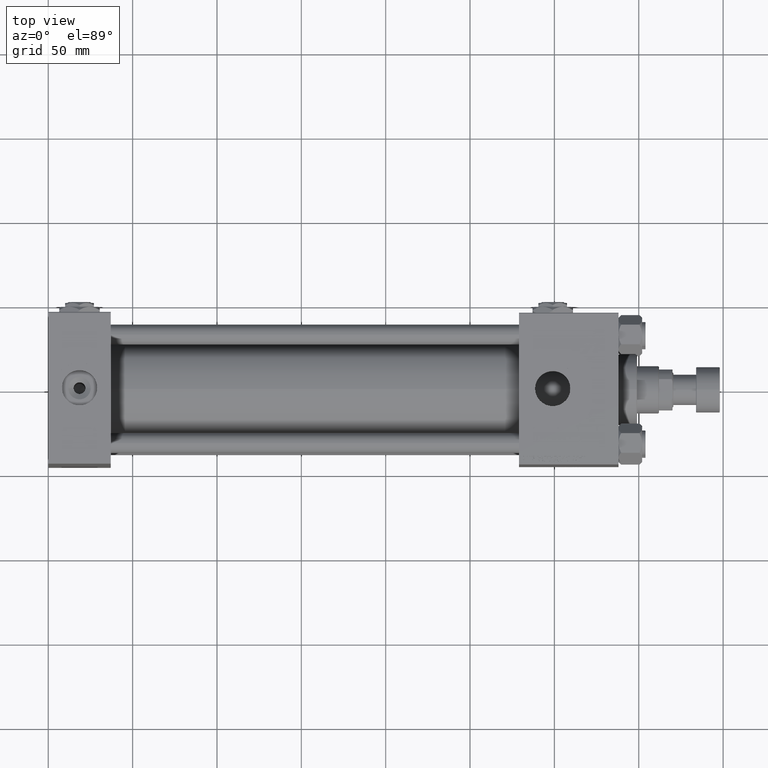
[diagram: clean part render]
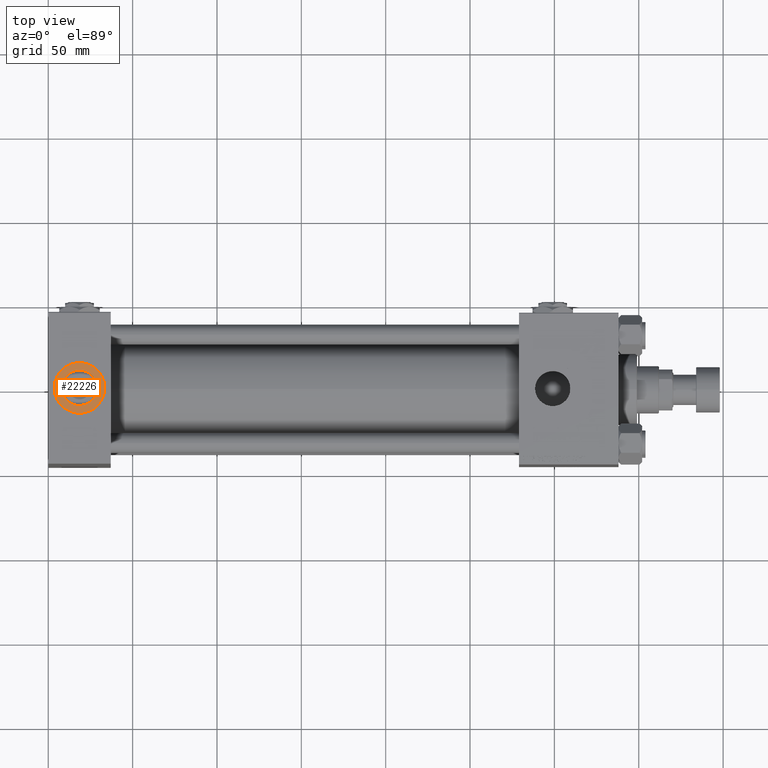
[diagram: same view with one face highlighted and labeled with its STEP entity id]
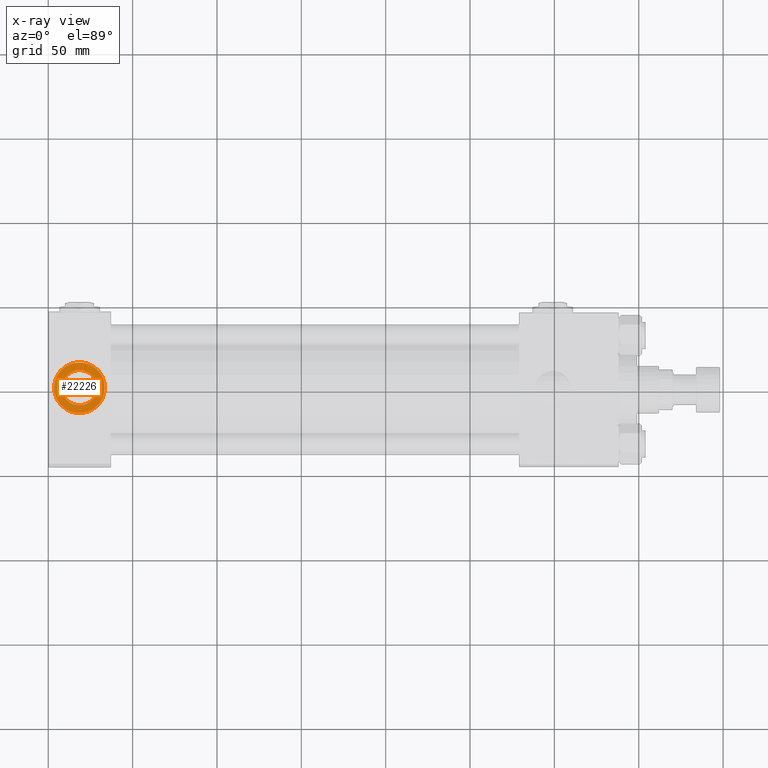
[diagram: x-ray of the same camera — body ghosted, the highlighted face saturated]
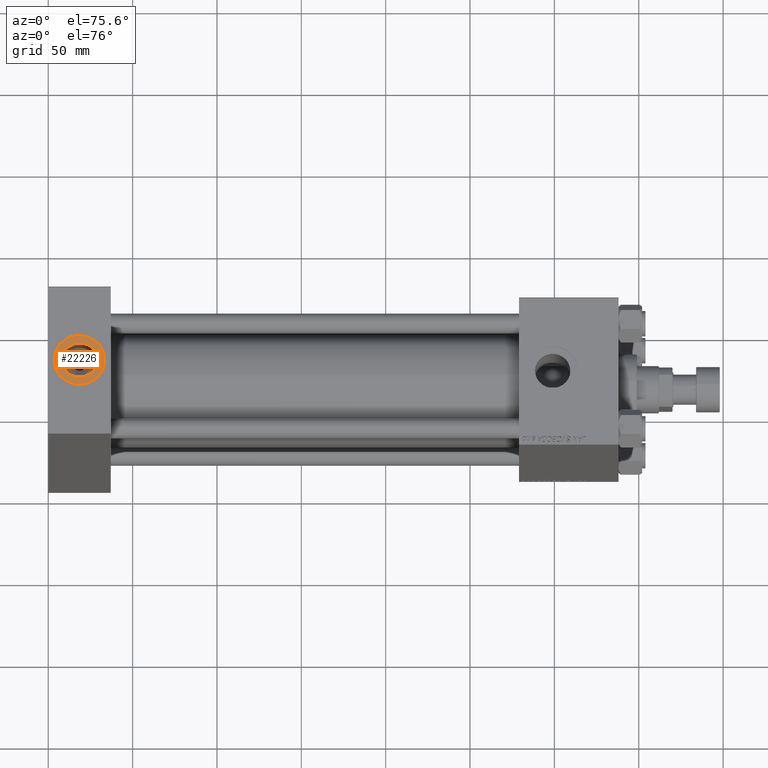
[diagram: same view with one face highlighted and labeled with its STEP entity id]
A machine part, top view. The second image highlights one B-rep face of the part: STEP entity #22226.
The next image is the same camera in x-ray: the body ghosted, the highlighted face saturated — about 0% of this face is hidden behind the body in this view.
A second angle (auxiliary view) of the same face is appended — the face is thin or edge-on in the first view.
In plain terms, the highlighted planar face has unit normal (0, 0, 1).
Its self-contained STEP definition (entity closure, byte-faithful):
#1400 = CARTESIAN_POINT ( 'NONE',  ( 18.50000000000000000, -1.268275607991932333E-14, 70.79999999999996874 ) ) ;
#1974 = EDGE_LOOP ( 'NONE', ( #44284, #50653 ) ) ;
#2078 = EDGE_CURVE ( 'NONE', #38456, #25973, #42652, .T. ) ;
#2915 = CARTESIAN_POINT ( 'NONE',  ( 18.50000000000000000, -1.268275607991932333E-14, 70.79999999999996874 ) ) ;
#5971 = VERTEX_POINT ( 'NONE', #50188 ) ;
#9039 = CIRCLE ( 'NONE', #45542, 10.48000000000000043 ) ;
#9380 = FACE_OUTER_BOUND ( 'NONE', #1974, .T. ) ;
#10122 = DIRECTION ( 'NONE',  ( 0.000000000000000000, 0.000000000000000000, 1.000000000000000000 ) ) ;
#13829 = ORIENTED_EDGE ( 'NONE', *, *, #43218, .F. ) ;
#13907 = DIRECTION ( 'NONE',  ( 0.000000000000000000, 0.000000000000000000, 1.000000000000000000 ) ) ;
#14914 = EDGE_CURVE ( 'NONE', #25973, #38456, #50110, .T. ) ;
#21036 = ORIENTED_EDGE ( 'NONE', *, *, #48602, .F. ) ;
#21045 = DIRECTION ( 'NONE',  ( 1.000000000000000000, 0.000000000000000000, 0.000000000000000000 ) ) ;
#22226 = ADVANCED_FACE ( 'NONE', ( #50279, #9380 ), #26116, .T. ) ;
#25973 = VERTEX_POINT ( 'NONE', #32522 ) ;
#26116 = PLANE ( 'NONE',  #43469 ) ;
#26324 = DIRECTION ( 'NONE',  ( 1.000000000000000000, 0.000000000000000000, 0.000000000000000000 ) ) ;
#27890 = DIRECTION ( 'NONE',  ( 0.000000000000000000, 0.000000000000000000, 1.000000000000000000 ) ) ;
#28199 = DIRECTION ( 'NONE',  ( 0.000000000000000000, 0.000000000000000000, 1.000000000000000000 ) ) ;
#30770 = DIRECTION ( 'NONE',  ( 1.000000000000000000, 0.000000000000000000, 0.000000000000000000 ) ) ;
#31048 = CIRCLE ( 'NONE', #47982, 10.48000000000000043 ) ;
#32522 = CARTESIAN_POINT ( 'NONE',  ( 3.499999999999997780, -1.084578588119829295E-14, 70.79999999999996874 ) ) ;
#34773 = DIRECTION ( 'NONE',  ( 0.000000000000000000, 0.000000000000000000, 1.000000000000000000 ) ) ;
#38456 = VERTEX_POINT ( 'NONE', #50596 ) ;
#42652 = CIRCLE ( 'NONE', #49428, 15.00000000000000355 ) ;
#43218 = EDGE_CURVE ( 'NONE', #5971, #48487, #31048, .T. ) ;
#43469 = AXIS2_PLACEMENT_3D ( 'NONE', #1400, #13907, #49766 ) ;
#44161 = CARTESIAN_POINT ( 'NONE',  ( 28.98000000000000043, -1.268275607991932333E-14, 70.79999999999996874 ) ) ;
#44284 = ORIENTED_EDGE ( 'NONE', *, *, #2078, .T. ) ;
#45483 = CARTESIAN_POINT ( 'NONE',  ( 18.50000000000000000, -1.268275607991932333E-14, 70.79999999999996874 ) ) ;
#45542 = AXIS2_PLACEMENT_3D ( 'NONE', #46530, #10122, #26324 ) ;
#46530 = CARTESIAN_POINT ( 'NONE',  ( 18.50000000000000000, -1.268275607991932333E-14, 70.79999999999996874 ) ) ;
#46707 = AXIS2_PLACEMENT_3D ( 'NONE', #51213, #34773, #30770 ) ;
#47982 = AXIS2_PLACEMENT_3D ( 'NONE', #45483, #28199, #21045 ) ;
#48078 = DIRECTION ( 'NONE',  ( 1.000000000000000000, 0.000000000000000000, 0.000000000000000000 ) ) ;
#48439 = EDGE_LOOP ( 'NONE', ( #21036, #13829 ) ) ;
#48487 = VERTEX_POINT ( 'NONE', #44161 ) ;
#48602 = EDGE_CURVE ( 'NONE', #48487, #5971, #9039, .T. ) ;
#49428 = AXIS2_PLACEMENT_3D ( 'NONE', #2915, #27890, #48078 ) ;
#49766 = DIRECTION ( 'NONE',  ( 1.000000000000000000, 0.000000000000000000, -0.000000000000000000 ) ) ;
#50110 = CIRCLE ( 'NONE', #46707, 15.00000000000000355 ) ;
#50188 = CARTESIAN_POINT ( 'NONE',  ( 8.019999999999999574, -1.139932623441289626E-14, 70.79999999999996874 ) ) ;
#50279 = FACE_BOUND ( 'NONE', #48439, .T. ) ;
#50596 = CARTESIAN_POINT ( 'NONE',  ( 33.50000000000000000, -1.268275607991932333E-14, 70.79999999999996874 ) ) ;
#50653 = ORIENTED_EDGE ( 'NONE', *, *, #14914, .T. ) ;
#51213 = CARTESIAN_POINT ( 'NONE',  ( 18.50000000000000000, -1.268275607991932333E-14, 70.79999999999996874 ) ) ;